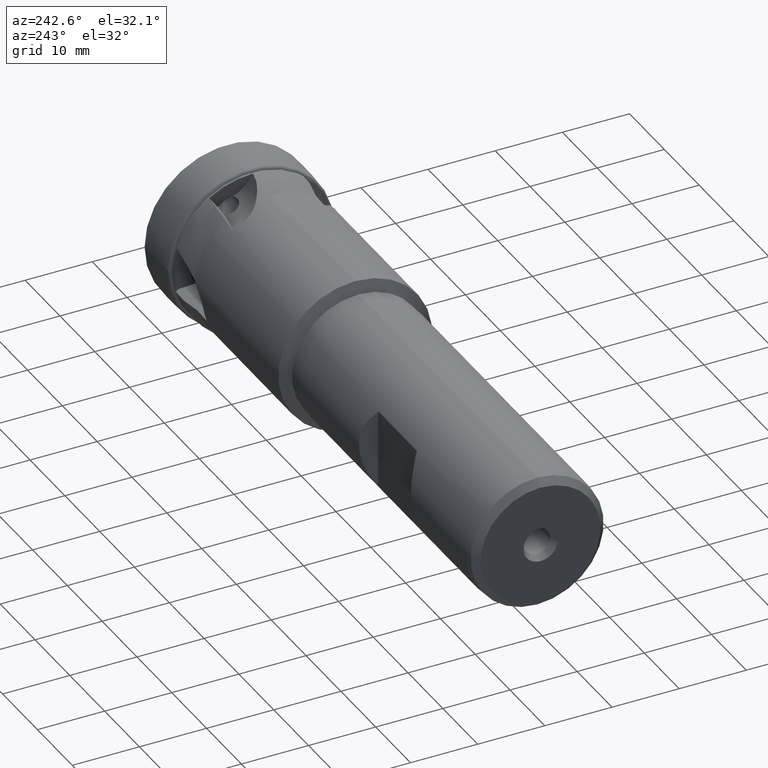
[diagram: clean part render]
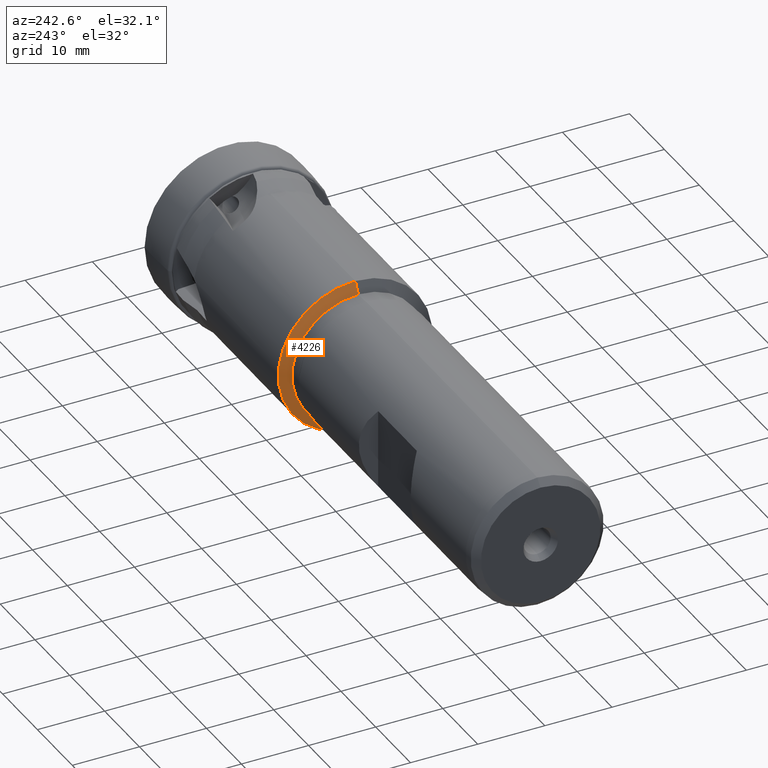
[diagram: same view with one face highlighted and labeled with its STEP entity id]
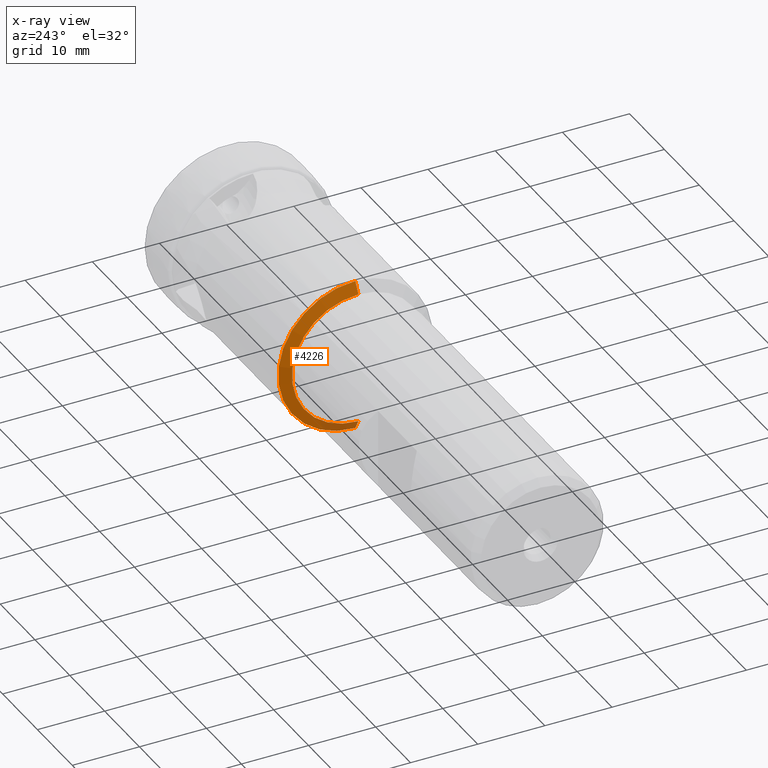
[diagram: x-ray of the same camera — body ghosted, the highlighted face saturated]
A machine part, auxiliary view. The second image highlights one B-rep face of the part: STEP entity #4226.
The next image is the same camera in x-ray: the body ghosted, the highlighted face saturated — about 9% of this face is hidden behind the body in this view.
In plain terms, the highlighted conical surface has half-angle 60 deg.
Its self-contained STEP definition (entity closure, byte-faithful):
#597 = EDGE_CURVE ( 'NONE', #5107, #5143, #4300, .T. ) ;
#599 = EDGE_CURVE ( 'NONE', #5143, #5130, #3231, .T. ) ;
#600 = EDGE_CURVE ( 'NONE', #5144, #5130, #4304, .T. ) ;
#601 = EDGE_CURVE ( 'NONE', #5107, #5144, #3241, .T. ) ;
#814 = CONICAL_SURFACE ( 'NONE', #815, 11.47000000000000100, 1.047197551196602700 ) ;
#815 = AXIS2_PLACEMENT_3D ( 'NONE', #1389, #1391, #1387 ) ;
#1387 = DIRECTION ( 'NONE',  ( 0.0000000000000000000, 0.0000000000000000000, -1.000000000000000000 ) ) ;
#1389 = CARTESIAN_POINT ( 'NONE',  ( -36.24714991585852200, 0.0000000000000000000, 0.0000000000000000000 ) ) ;
#1390 = FACE_OUTER_BOUND ( 'NONE', #5073, .T. ) ;
#1391 = DIRECTION ( 'NONE',  ( 1.000000000000000000, -0.0000000000000000000, -0.0000000000000000000 ) ) ;
#1884 = CARTESIAN_POINT ( 'NONE',  ( -37.15358983848622600, 0.0000000000000000000, -9.899999999999995000 ) ) ;
#1914 = CARTESIAN_POINT ( 'NONE',  ( -36.24714991585852200, 1.404669878622014200E-015, 11.47000000000000100 ) ) ;
#1927 = CARTESIAN_POINT ( 'NONE',  ( -37.15358983848622600, 1.308535104888946600E-015, 9.899999999999995000 ) ) ;
#1928 = CARTESIAN_POINT ( 'NONE',  ( -36.24714991585852200, 0.0000000000000000000, -11.47000000000000100 ) ) ;
#2441 = ORIENTED_EDGE ( 'NONE', *, *, #597, .T. ) ;
#2444 = ORIENTED_EDGE ( 'NONE', *, *, #600, .F. ) ;
#2446 = ORIENTED_EDGE ( 'NONE', *, *, #601, .F. ) ;
#2447 = ORIENTED_EDGE ( 'NONE', *, *, #599, .T. ) ;
#3231 = LINE ( 'NONE', #3238, #4301 ) ;
#3233 = CARTESIAN_POINT ( 'NONE',  ( -37.15358983848622600, 0.0000000000000000000, 0.0000000000000000000 ) ) ;
#3234 = DIRECTION ( 'NONE',  ( 1.000000000000000000, -0.0000000000000000000, -0.0000000000000000000 ) ) ;
#3235 = DIRECTION ( 'NONE',  ( 0.0000000000000000000, 0.0000000000000000000, -1.000000000000000000 ) ) ;
#3236 = CARTESIAN_POINT ( 'NONE',  ( -36.24714991585852200, 0.0000000000000000000, -11.47000000000000100 ) ) ;
#3238 = CARTESIAN_POINT ( 'NONE',  ( -36.24714991585852200, 1.404669878622014200E-015, 11.47000000000000100 ) ) ;
#3239 = DIRECTION ( 'NONE',  ( 0.4999999999999957300, 1.060575238724910100E-016, 0.8660254037844411500 ) ) ;
#3241 = LINE ( 'NONE', #3236, #4303 ) ;
#3242 = CARTESIAN_POINT ( 'NONE',  ( -36.24714991585852200, 0.0000000000000000000, 0.0000000000000000000 ) ) ;
#3243 = DIRECTION ( 'NONE',  ( 1.000000000000000000, -0.0000000000000000000, -0.0000000000000000000 ) ) ;
#3244 = DIRECTION ( 'NONE',  ( 0.0000000000000000000, 0.0000000000000000000, -1.000000000000000000 ) ) ;
#3245 = DIRECTION ( 'NONE',  ( 0.4999999999999957300, 0.0000000000000000000, -0.8660254037844411500 ) ) ;
#4226 = ADVANCED_FACE ( 'NONE', ( #1390 ), #814, .T. ) ;
#4300 = CIRCLE ( 'NONE', #4302, 9.899999999999995000 ) ;
#4301 = VECTOR ( 'NONE', #3239, 999.9999999999998900 ) ;
#4302 = AXIS2_PLACEMENT_3D ( 'NONE', #3233, #3234, #3235 ) ;
#4303 = VECTOR ( 'NONE', #3245, 999.9999999999998900 ) ;
#4304 = CIRCLE ( 'NONE', #4306, 11.47000000000000100 ) ;
#4306 = AXIS2_PLACEMENT_3D ( 'NONE', #3242, #3243, #3244 ) ;
#5073 = EDGE_LOOP ( 'NONE', ( #2441, #2447, #2444, #2446 ) ) ;
#5107 = VERTEX_POINT ( 'NONE', #1884 ) ;
#5130 = VERTEX_POINT ( 'NONE', #1914 ) ;
#5143 = VERTEX_POINT ( 'NONE', #1927 ) ;
#5144 = VERTEX_POINT ( 'NONE', #1928 ) ;